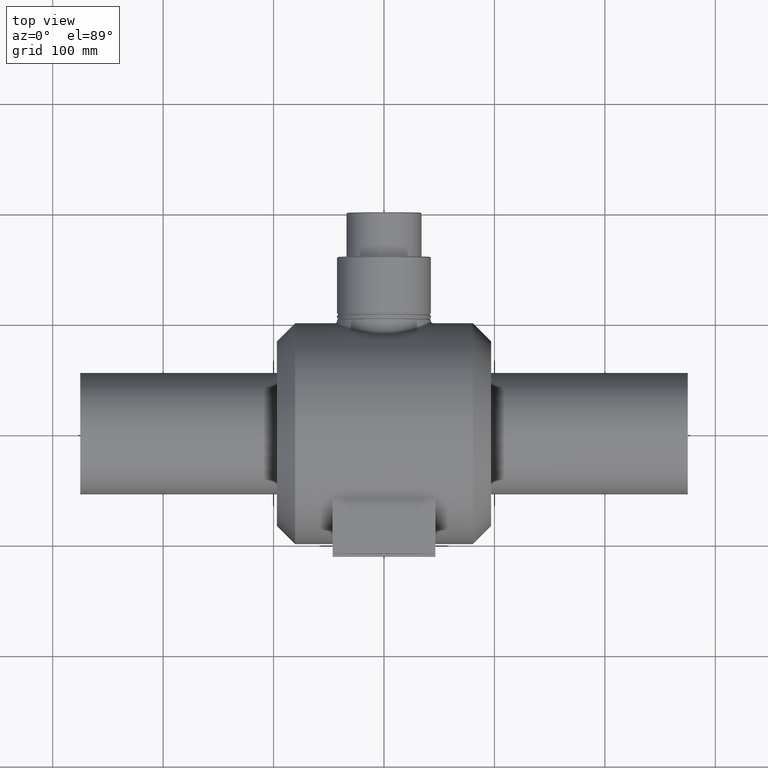
[diagram: clean part render]
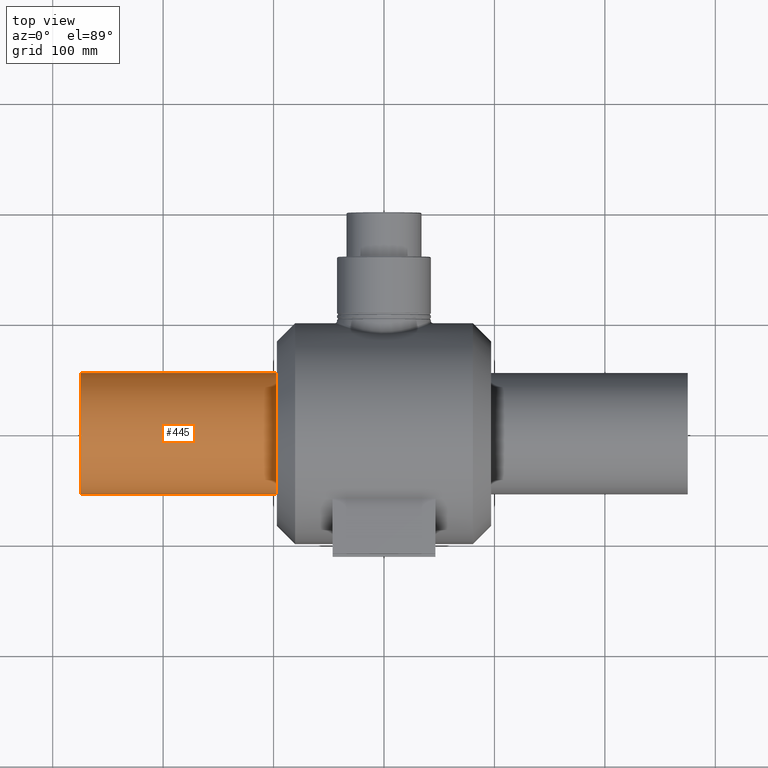
[diagram: same view with one face highlighted and labeled with its STEP entity id]
A machine part, top view. The second image highlights one B-rep face of the part: STEP entity #445.
In plain terms, the highlighted cylindrical surface (bore or boss wall) has radius 55 mm, axis along (1, 0, 0).
Its self-contained STEP definition (entity closure, byte-faithful):
#102=FACE_BOUND('',#200,.T.);
#111=CYLINDRICAL_SURFACE('',#505,55.);
#143=FACE_OUTER_BOUND('',#199,.T.);
#199=EDGE_LOOP('',(#410));
#200=EDGE_LOOP('',(#411));
#220=CIRCLE('',#487,55.);
#228=CIRCLE('',#504,55.);
#259=VERTEX_POINT('',#909);
#267=VERTEX_POINT('',#934);
#307=EDGE_CURVE('',#259,#259,#220,.T.);
#315=EDGE_CURVE('',#267,#267,#228,.T.);
#410=ORIENTED_EDGE('',*,*,#307,.F.);
#411=ORIENTED_EDGE('',*,*,#315,.T.);
#445=ADVANCED_FACE('',(#143,#102),#111,.T.);
#487=AXIS2_PLACEMENT_3D('',#910,#606,#607);
#504=AXIS2_PLACEMENT_3D('',#935,#640,#641);
#505=AXIS2_PLACEMENT_3D('',#936,#642,#643);
#606=DIRECTION('center_axis',(1.,0.,0.));
#607=DIRECTION('ref_axis',(0.,0.,-1.));
#640=DIRECTION('center_axis',(1.,0.,0.));
#641=DIRECTION('ref_axis',(0.,0.,-1.));
#642=DIRECTION('center_axis',(1.,0.,0.));
#643=DIRECTION('ref_axis',(0.,1.,0.));
#909=CARTESIAN_POINT('',(-97.,55.,0.));
#910=CARTESIAN_POINT('Origin',(-97.,0.,0.));
#934=CARTESIAN_POINT('',(-275.,55.,0.));
#935=CARTESIAN_POINT('Origin',(-275.,0.,0.));
#936=CARTESIAN_POINT('Origin',(-186.,0.,0.));